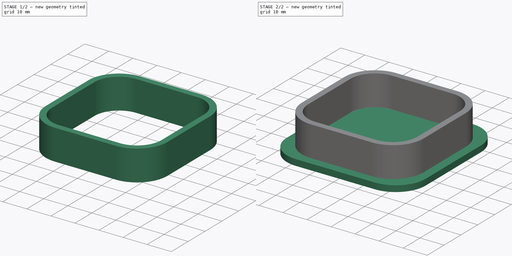
[diagram: build sequence overview — one tinted view per stage of 2, left to right]
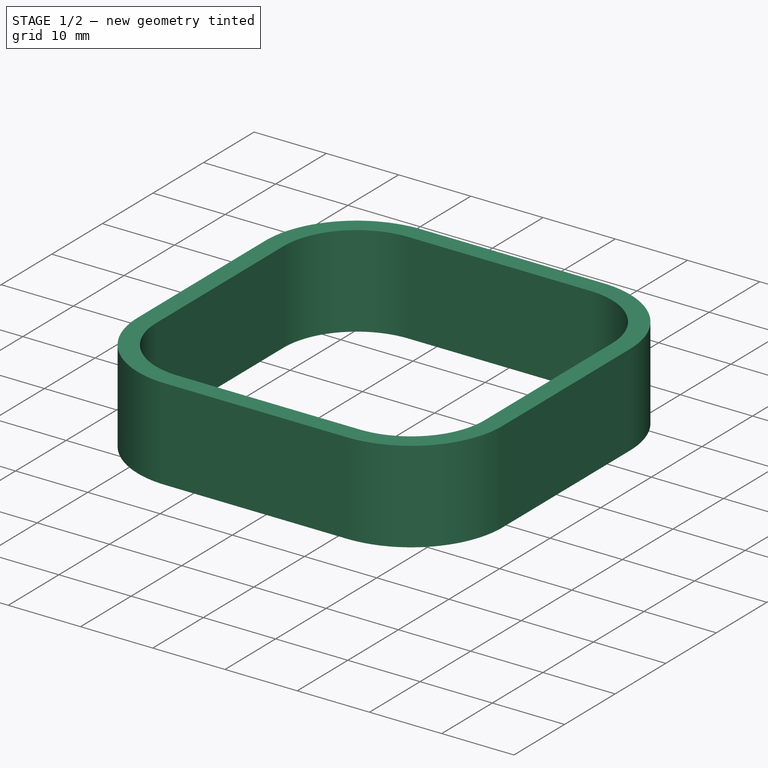
[diagram: stage 1 of 2 — iso view after this stage's code; geometry added in this stage tinted green]
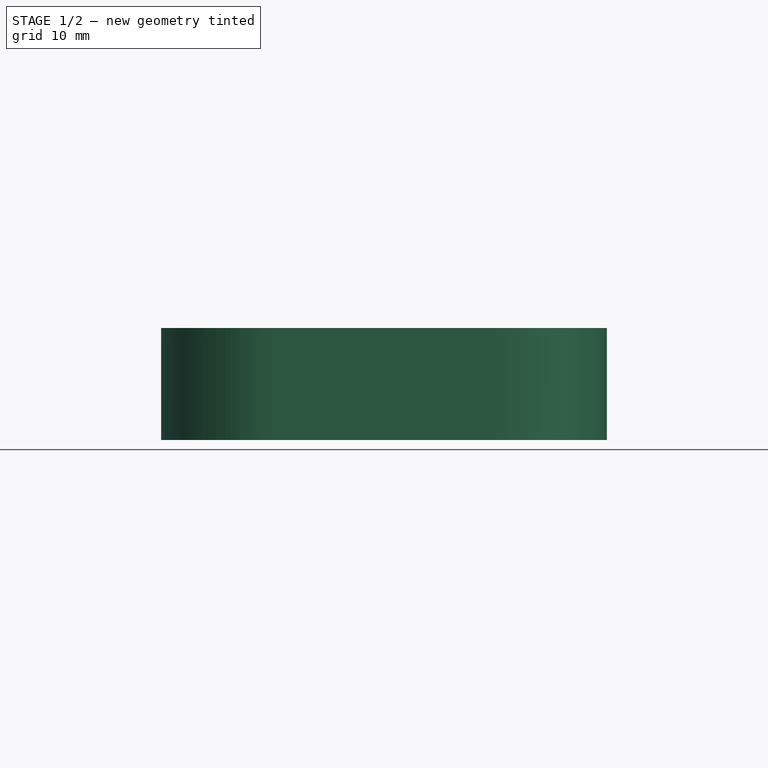
[diagram: stage 1 of 2 — front view after this stage's code; geometry added in this stage tinted green]
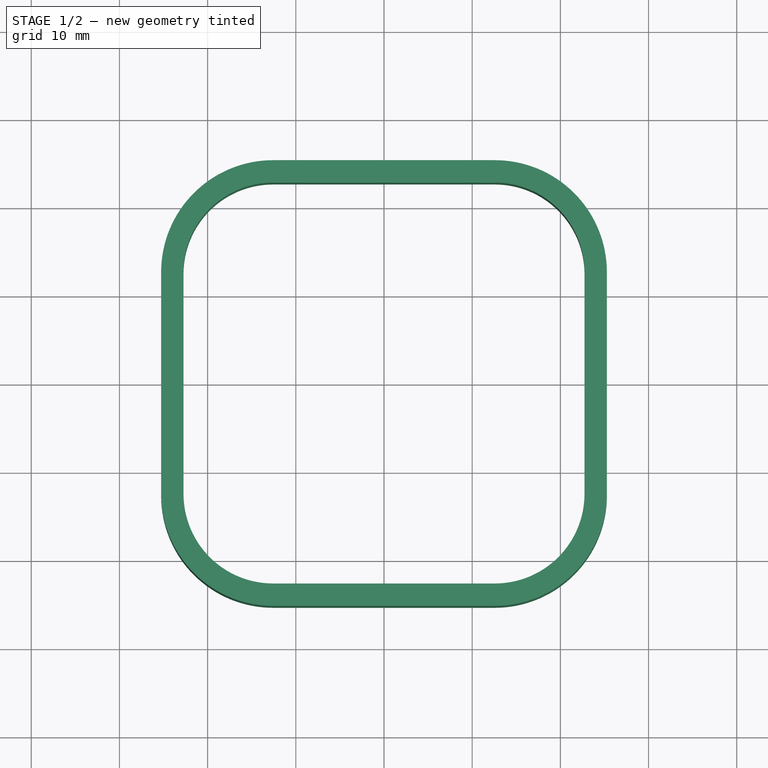
[diagram: stage 1 of 2 — top view after this stage's code; geometry added in this stage tinted green]
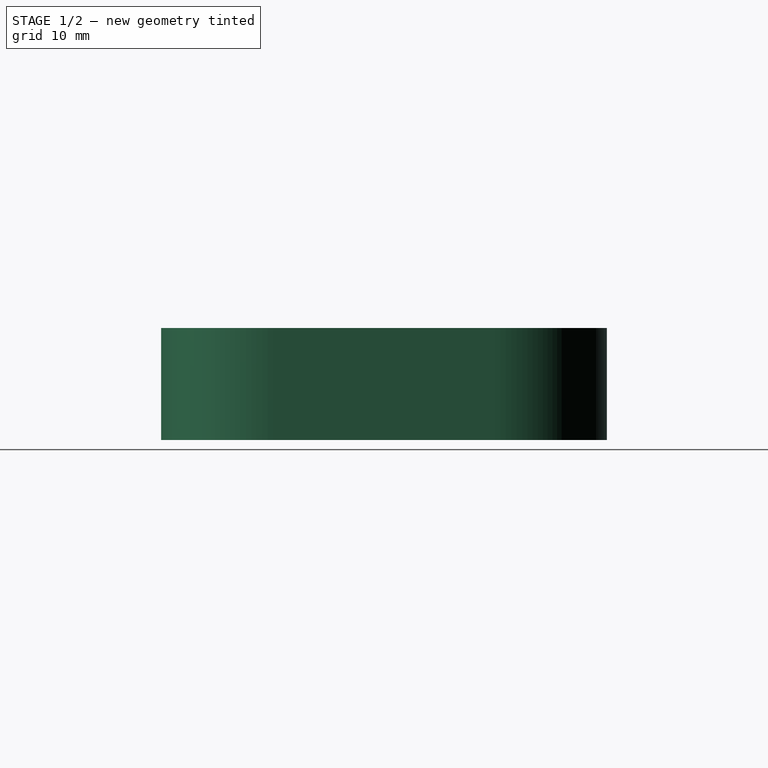
[diagram: stage 1 of 2 — right view after this stage's code; geometry added in this stage tinted green]
FCSTD DOCUMENT  (FreeCAD 0.21R31917 (Git))
Label: bumper mount blanking cap
License: All rights reserved
LicenseURL: http://en.wikipedia.org/wiki/All_rights_reserved
objects: Sketcher::SketchObject×2, PartDesign::Pad×2, PartDesign::Body×1
note: 7 computed .brp shape members not serialized (recipe doc carries the construction recipe); baked Part::Feature solids carry a one-line shape summary decoded from their .brp

FEATURE [Sketcher::SketchObject] Sketch
  FullyConstrained = false
  MapMode = 5
  Support = -> [XY_Plane]
  sketch-geometry (31):
    g0: LineSegment StartX=-25.273 StartY=-12.573 StartZ=0 EndX=-25.273 EndY=12.573 EndZ=0
    g1: LineSegment StartX=-12.573 StartY=25.273 StartZ=0 EndX=12.573 EndY=25.273 EndZ=0
    g2: LineSegment StartX=25.273 StartY=12.573 StartZ=0 EndX=25.273 EndY=-12.573 EndZ=0
    g3: LineSegment StartX=12.573 StartY=-25.273 StartZ=0 EndX=-12.573 EndY=-25.273 EndZ=0
    g4: GeomPoint X=0 Y=0 Z=0
    g5: ArcOfCircle CenterX=12.573 CenterY=12.573 CenterZ=0 NormalX=0 NormalY=0 NormalZ=1 AngleXU=0 Radius=12.7 StartAngle=0 EndAngle=1.5708
    g6: GeomPoint X=25.273 Y=25.273 Z=0
    g7: ArcOfCircle CenterX=12.573 CenterY=-12.573 CenterZ=0 NormalX=0 NormalY=0 NormalZ=1 AngleXU=0 Radius=12.7 StartAngle=4.71239 EndAngle=6.28319
    g8: GeomPoint X=25.273 Y=-25.273 Z=0
    g9: ArcOfCircle CenterX=-12.573 CenterY=-12.573 CenterZ=0 NormalX=0 NormalY=0 NormalZ=1 AngleXU=0 Radius=12.7 StartAngle=3.14159 EndAngle=4.71239
    g10: GeomPoint X=-25.273 Y=-25.273 Z=0
    g11: ArcOfCircle CenterX=-12.573 CenterY=12.573 CenterZ=0 NormalX=0 NormalY=0 NormalZ=1 AngleXU=0 Radius=12.7 StartAngle=1.5708 EndAngle=3.14159
    g12: GeomPoint X=-25.273 Y=25.273 Z=0
    g13: LineSegment StartX=-22.733 StartY=-12.573 StartZ=0 EndX=-22.733 EndY=12.573 EndZ=0
    g14: LineSegment StartX=-12.573 StartY=22.733 StartZ=0 EndX=12.573 EndY=22.733 EndZ=0
    g15: LineSegment StartX=22.733 StartY=12.573 StartZ=0 EndX=22.733 EndY=-12.573 EndZ=0
    g16: LineSegment StartX=12.573 StartY=-22.733 StartZ=0 EndX=-12.573 EndY=-22.733 EndZ=0
    g17: GeomPoint X=0 Y=0 Z=0
    g18: ArcOfCircle CenterX=-12.573 CenterY=12.573 CenterZ=0 NormalX=0 NormalY=0 NormalZ=1 AngleXU=0 Radius=10.16 StartAngle=1.5708 EndAngle=3.14159
    g19: GeomPoint X=-22.733 Y=22.733 Z=0
    g20: ArcOfCircle CenterX=12.573 CenterY=12.573 CenterZ=0 NormalX=0 NormalY=0 NormalZ=1 AngleXU=0 Radius=10.16 StartAngle=0 EndAngle=1.5708
    g21: GeomPoint X=22.733 Y=22.733 Z=0
    g22: ArcOfCircle CenterX=12.573 CenterY=-12.573 CenterZ=0 NormalX=0 NormalY=0 NormalZ=1 AngleXU=0 Radius=10.16 StartAngle=4.71239 EndAngle=6.28319
    g23: GeomPoint X=22.733 Y=-22.733 Z=0
    g24: ArcOfCircle CenterX=-12.573 CenterY=-12.573 CenterZ=0 NormalX=0 NormalY=0 NormalZ=1 AngleXU=0 Radius=10.16 StartAngle=3.14159 EndAngle=4.71239
    g25: GeomPoint X=-22.733 Y=-22.733 Z=0
    g26: LineSegment StartX=9.87094 StartY=22.733 StartZ=0 EndX=9.87094 EndY=25.273 EndZ=0
    g27: LineSegment StartX=6.30367 StartY=-22.733 StartZ=0 EndX=6.30367 EndY=-25.273 EndZ=0
    g28: LineSegment StartX=22.733 StartY=-3.91068 StartZ=0 EndX=25.273 EndY=-3.91068 EndZ=0
    g29: LineSegment StartX=-22.733 StartY=-4.62337 StartZ=0 EndX=-25.273 EndY=-4.62337 EndZ=0
    g30: LineSegment StartX=-12.573 StartY=22.733 StartZ=0 EndX=-12.573 EndY=25.273 EndZ=0
  constraints (70):
    c: Horizontal(g1)
    c: Horizontal(g3)
    c: Vertical(g0)
    c: Vertical(g2)
    c: Symmetric(g6,g10,g4)
    c: Coincident(g4,g-1)
    c: PointOnObject(g6,g1)
    c: PointOnObject(g6,g2)
    c: Tangent(g1,g5) = 1.5708
    c: Tangent(g2,g5) = 1.5708
    c: PointOnObject(g8,g2)
    c: PointOnObject(g8,g3)
    c: Tangent(g2,g7) = 1.5708
    c: Tangent(g3,g7) = 1.5708
    c: PointOnObject(g10,g3)
    c: PointOnObject(g10,g0)
    c: Tangent(g3,g9) = 1.5708
    c: Tangent(g0,g9) = 1.5708
    c: PointOnObject(g12,g0)
    c: PointOnObject(g12,g1)
    c: Tangent(g0,g11) = 1.5708
    c: Tangent(g1,g11) = 1.5708
    c: Equal(g11,g9)
    c: Equal(g9,g7)
    c: Equal(g7,g5)
    c: DistanceX(g0,g2) = 50.546
    c: DistanceY(g3,g1) = 50.546
    c: Radius(g5) = 12.7
    c: Horizontal(g14)
    c: Horizontal(g16)
    c: Vertical(g13)
    c: Vertical(g15)
    c: Symmetric(g21,g25,g17)
    c: Coincident(g17,g4)
    c: PointOnObject(g19,g14)
    c: PointOnObject(g19,g13)
    c: Tangent(g14,g18) = 1.5708
    c: Tangent(g13,g18) = 1.5708
    c: PointOnObject(g21,g14)
    c: PointOnObject(g21,g15)
    c: Tangent(g14,g20) = 1.5708
    c: Tangent(g15,g20) = 1.5708
    c: PointOnObject(g23,g16)
    c: PointOnObject(g23,g15)
    c: Tangent(g16,g22) = 1.5708
    c: Tangent(g15,g22) = 1.5708
    c: PointOnObject(g25,g16)
    c: PointOnObject(g25,g13)
    c: Tangent(g16,g24) = 1.5708
    c: Tangent(g13,g24) = 1.5708
    c: Equal(g18,g20)
    c: Equal(g20,g22)
    c: Equal(g22,g24)
    c: PointOnObject(g26,g14)
    c: PointOnObject(g26,g1)
    c: Vertical(g26)
    c: PointOnObject(g27,g16)
    c: PointOnObject(g27,g3)
    c: Vertical(g27)
    c: PointOnObject(g28,g15)
    c: PointOnObject(g28,g2)
    c: Horizontal(g28)
    c: PointOnObject(g29,g13)
    c: PointOnObject(g29,g0)
    c: Horizontal(g29)
    c: Equal(g29,g27)
    c: DistanceY(g26,g26) = 2.54
    c: Coincident(g30,g14)
    c: Coincident(g30,g1)
    c: Vertical(g30)
FEATURE [PartDesign::Pad] Pad
  Direction = (0,0,1)
  Length = 12.7
  Length2 = 10
  Profile = -> Sketch
  ReferenceAxis = -> Sketch [N_Axis]
  Type = 0
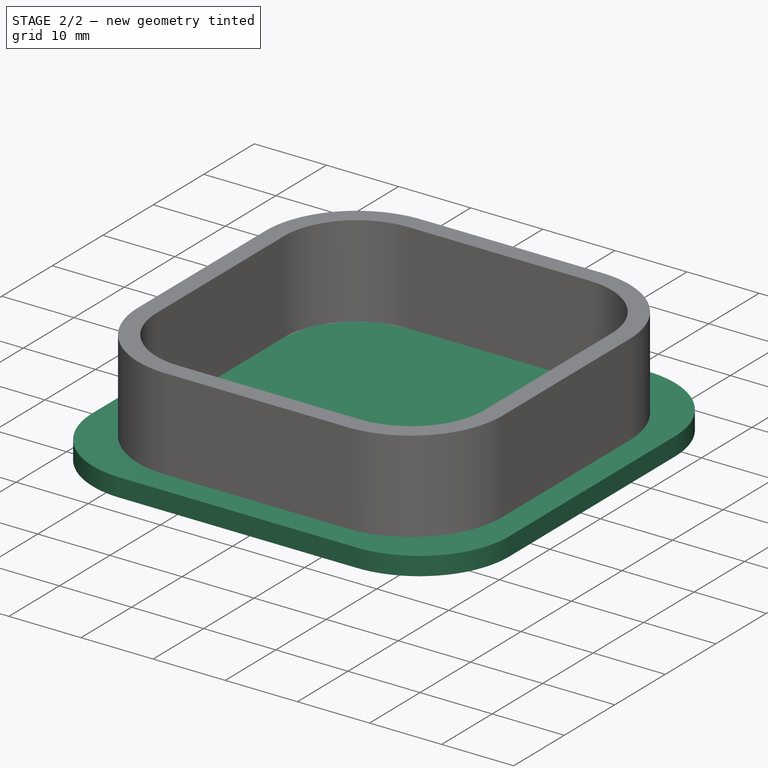
[diagram: stage 2 of 2 — iso view after this stage's code; geometry added in this stage tinted green]
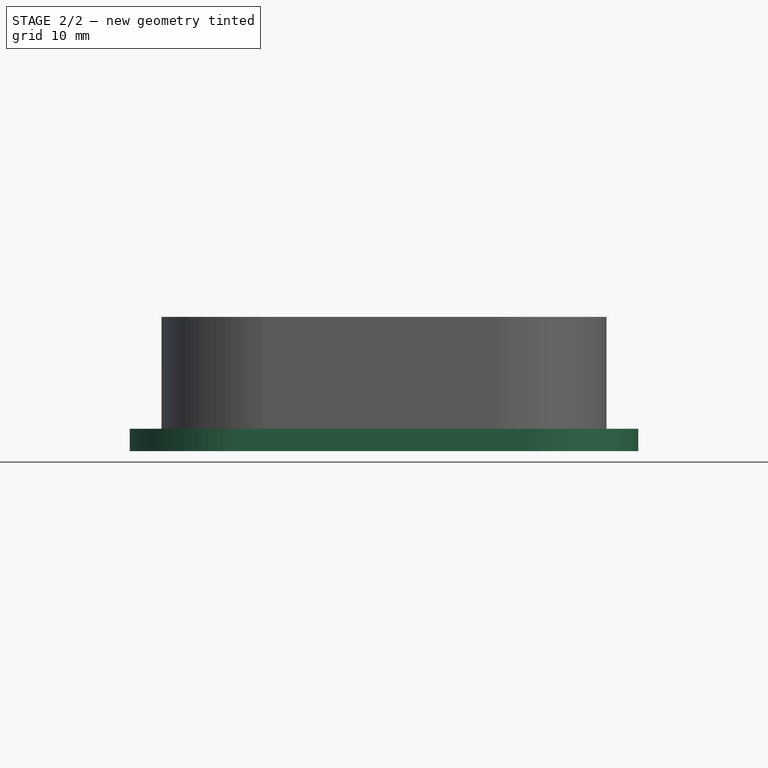
[diagram: stage 2 of 2 — front view after this stage's code; geometry added in this stage tinted green]
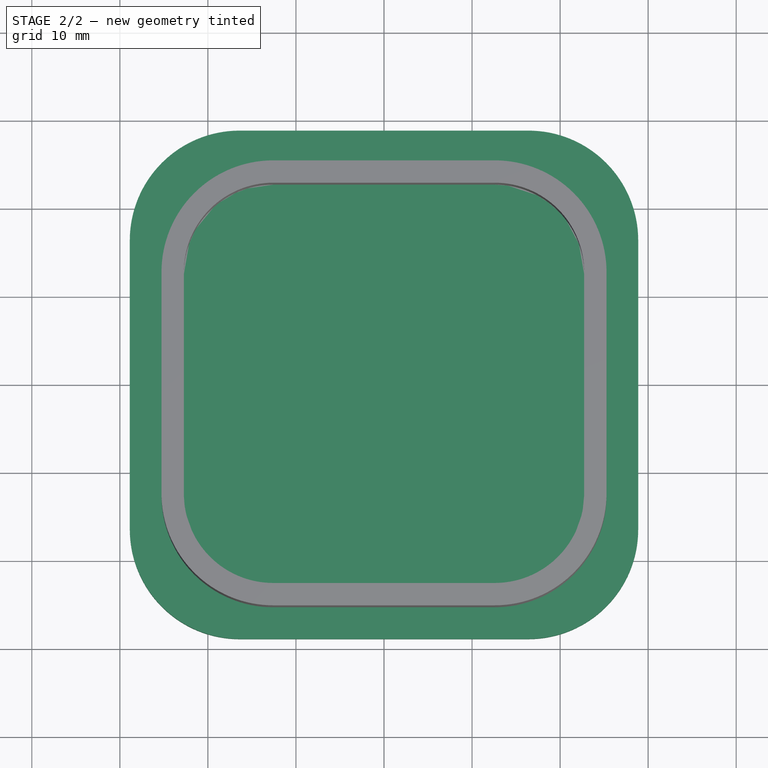
[diagram: stage 2 of 2 — top view after this stage's code; geometry added in this stage tinted green]
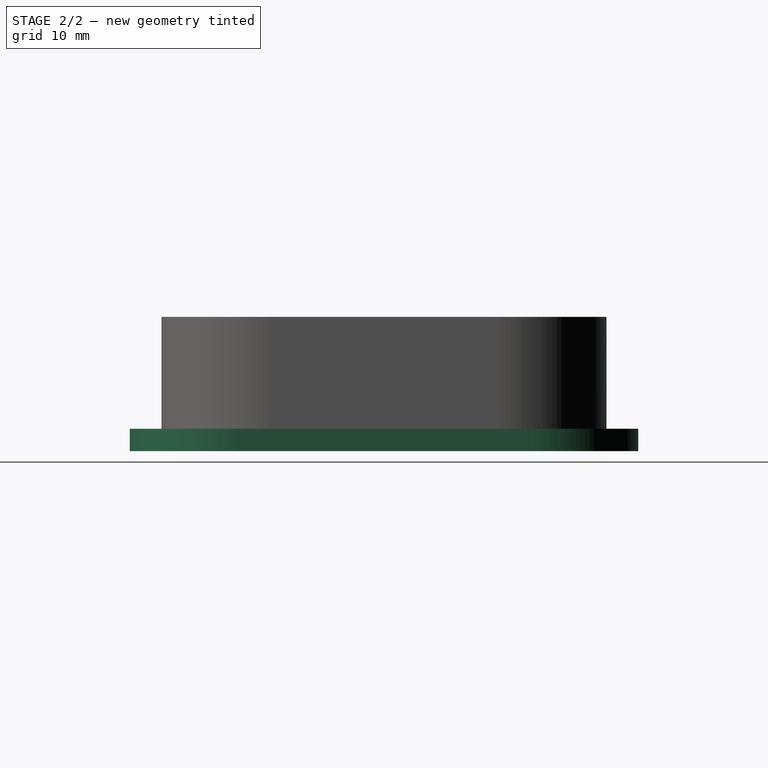
[diagram: stage 2 of 2 — right view after this stage's code; geometry added in this stage tinted green]
FEATURE [Sketcher::SketchObject] Sketch001
  FullyConstrained = false
  MapMode = 5
  Support = -> [XY_Plane]
  sketch-geometry (13):
    g0: LineSegment StartX=-28.8707 StartY=-16.3994 StartZ=0 EndX=-28.8707 EndY=16.3994 EndZ=0
    g1: LineSegment StartX=-16.3994 StartY=28.8707 StartZ=0 EndX=16.3994 EndY=28.8707 EndZ=0
    g2: LineSegment StartX=28.8707 StartY=16.3994 StartZ=0 EndX=28.8707 EndY=-16.3994 EndZ=0
    g3: LineSegment StartX=16.3994 StartY=-28.8707 StartZ=0 EndX=-16.3994 EndY=-28.8707 EndZ=0
    g4: GeomPoint X=0 Y=0 Z=0
    g5: ArcOfCircle CenterX=-16.3994 CenterY=16.3994 CenterZ=0 NormalX=0 NormalY=0 NormalZ=1 AngleXU=0 Radius=12.4713 StartAngle=1.5708 EndAngle=3.14159
    g6: GeomPoint X=-28.8707 Y=28.8707 Z=0
    g7: ArcOfCircle CenterX=16.3994 CenterY=16.3994 CenterZ=0 NormalX=0 NormalY=0 NormalZ=1 AngleXU=0 Radius=12.4713 StartAngle=0 EndAngle=1.5708
    g8: GeomPoint X=28.8707 Y=28.8707 Z=0
    g9: ArcOfCircle CenterX=16.3994 CenterY=-16.3994 CenterZ=0 NormalX=0 NormalY=0 NormalZ=1 AngleXU=0 Radius=12.4713 StartAngle=4.71239 EndAngle=6.28319
    g10: GeomPoint X=28.8707 Y=-28.8707 Z=0
    g11: ArcOfCircle CenterX=-16.3994 CenterY=-16.3994 CenterZ=0 NormalX=0 NormalY=0 NormalZ=1 AngleXU=0 Radius=12.4713 StartAngle=3.14159 EndAngle=4.71239
    g12: GeomPoint X=-28.8707 Y=-28.8707 Z=0
  constraints (26):
    c: Horizontal(g1)
    c: Horizontal(g3)
    c: Vertical(g0)
    c: Vertical(g2)
    c: Symmetric(g8,g12,g4)
    c: Coincident(g4,g-1)
    c: PointOnObject(g6,g0)
    c: PointOnObject(g6,g1)
    c: Tangent(g0,g5) = 1.5708
    c: Tangent(g1,g5) = 1.5708
    c: PointOnObject(g8,g1)
    c: PointOnObject(g8,g2)
    c: Tangent(g1,g7) = 1.5708
    c: Tangent(g2,g7) = 1.5708
    c: PointOnObject(g10,g3)
    c: PointOnObject(g10,g2)
    c: Tangent(g3,g9) = 1.5708
    c: Tangent(g2,g9) = 1.5708
    c: PointOnObject(g12,g0)
    c: PointOnObject(g12,g3)
    c: Tangent(g0,g11) = 1.5708
    c: Tangent(g3,g11) = 1.5708
    c: Equal(g11,g9)
    c: Equal(g9,g7)
    c: Equal(g7,g5)
    c: Equal(g2,g1)
FEATURE [PartDesign::Pad] Pad001
  BaseFeature = -> Pad
  Direction = (0,0,1)
  Length = 2.54
  Length2 = 10
  Profile = -> Sketch001
  ReferenceAxis = -> Sketch001 [N_Axis]
  Reversed = true
  Type = 0
FEATURE [PartDesign::Body] Body
  Group = -> [Sketch,Pad,Sketch001,Pad001]
  Origin = -> Origin
  Tip = -> Pad001
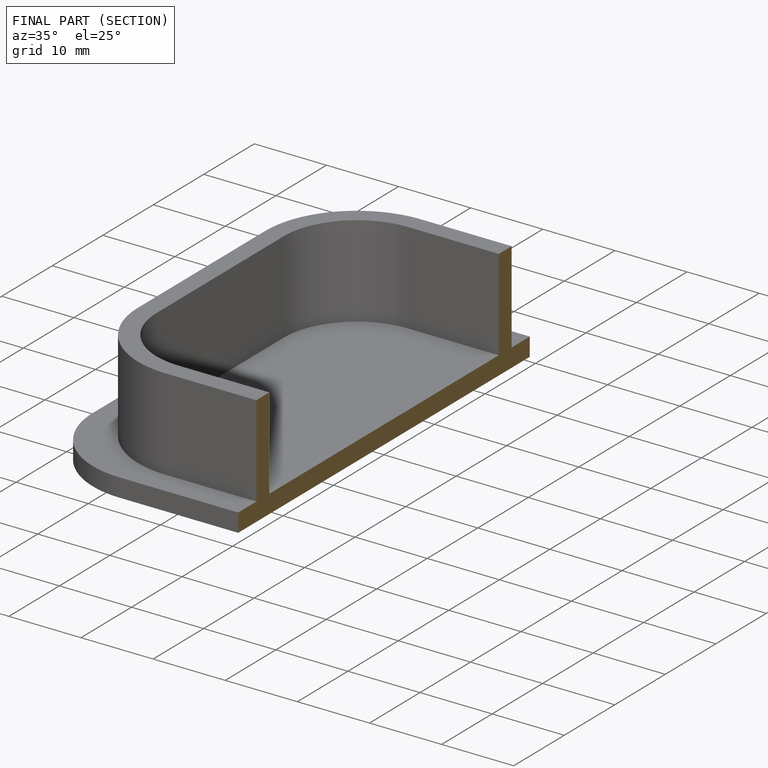
[diagram: finished part — half-section view (interior)]
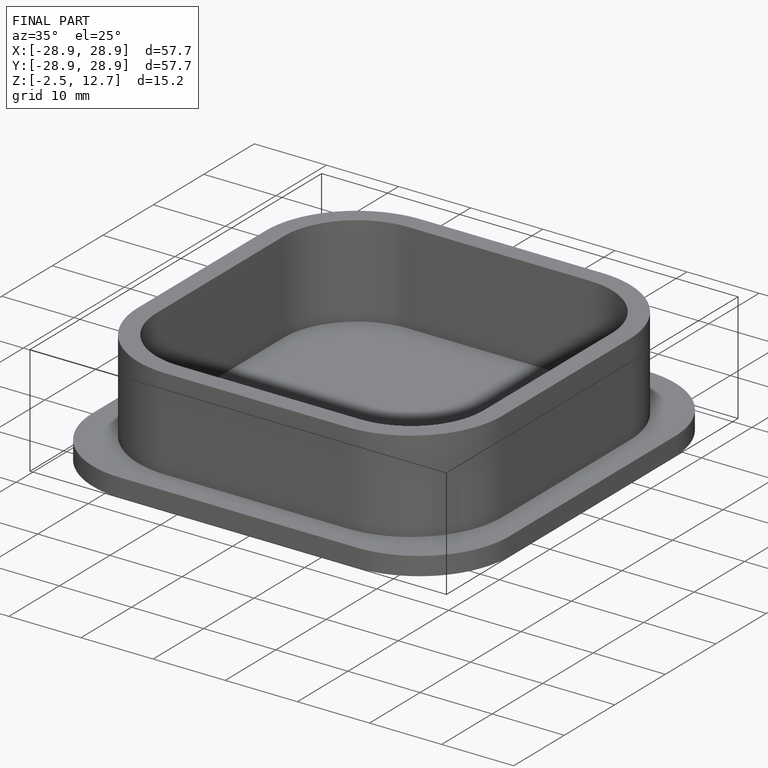
[diagram: finished part — iso view with bounding-box wireframe]
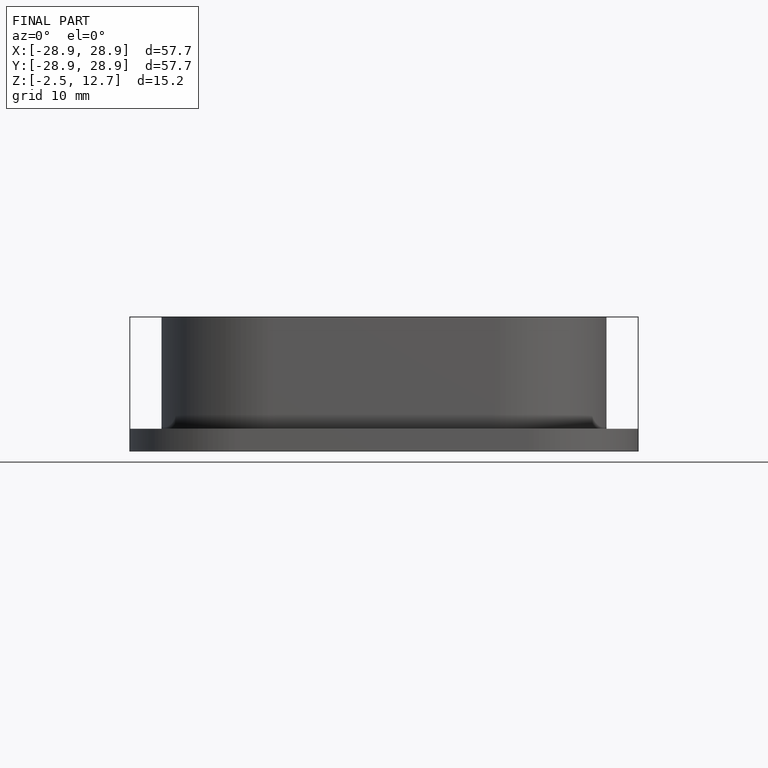
[diagram: finished part — front view with bounding-box wireframe]
